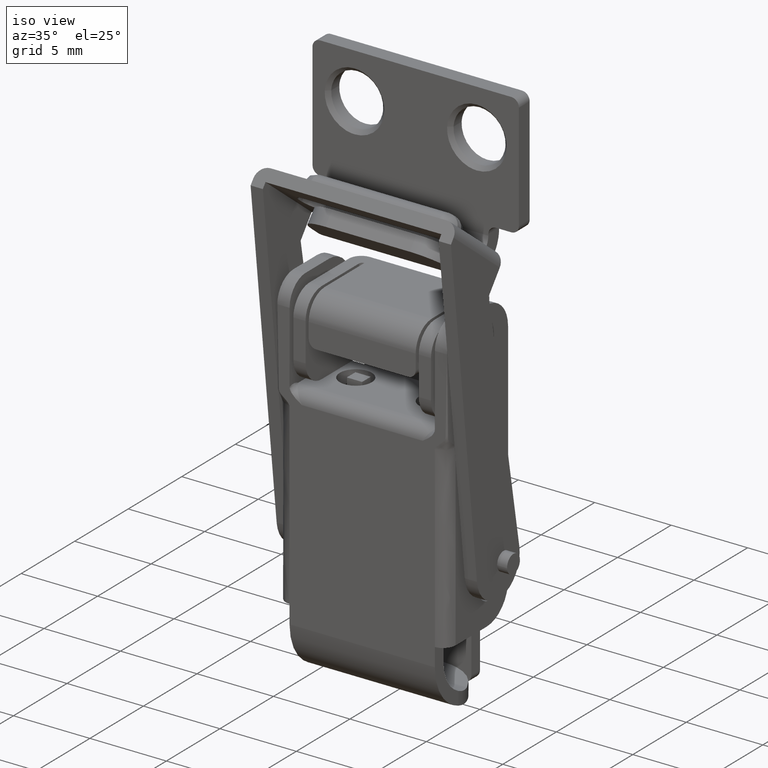
[diagram: clean part render]
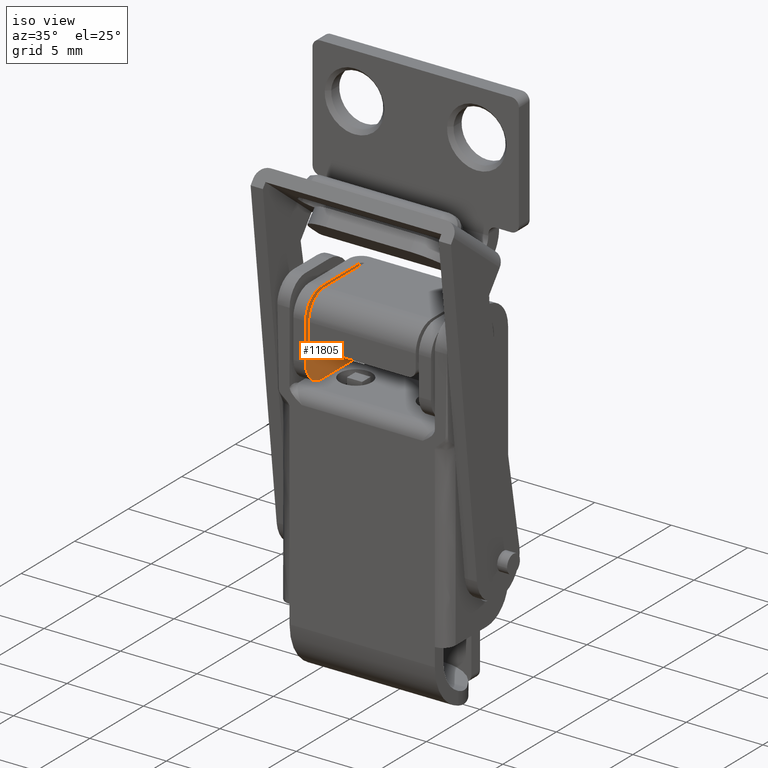
[diagram: same view with one face highlighted and labeled with its STEP entity id]
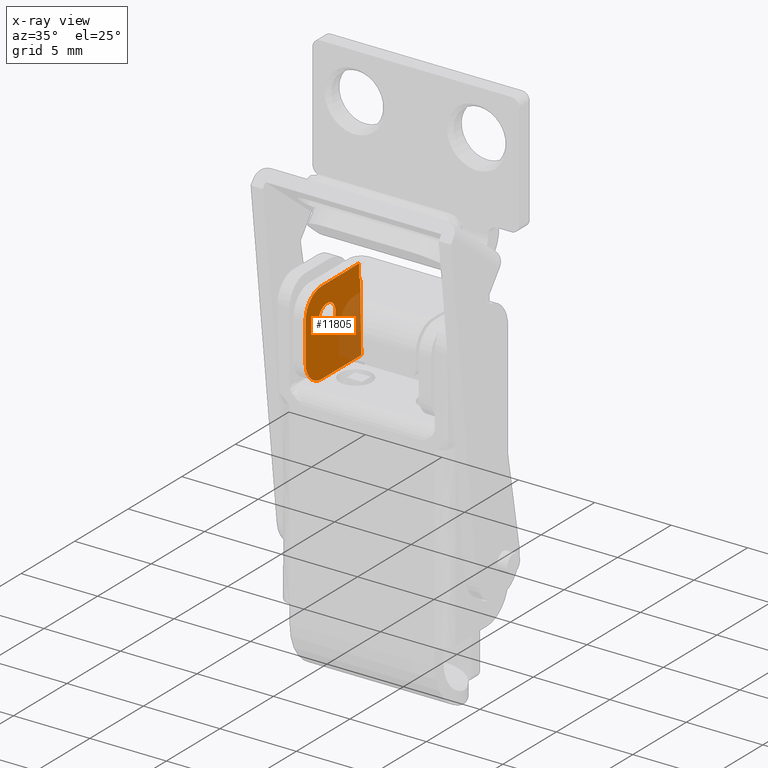
[diagram: x-ray of the same camera — body ghosted, the highlighted face saturated]
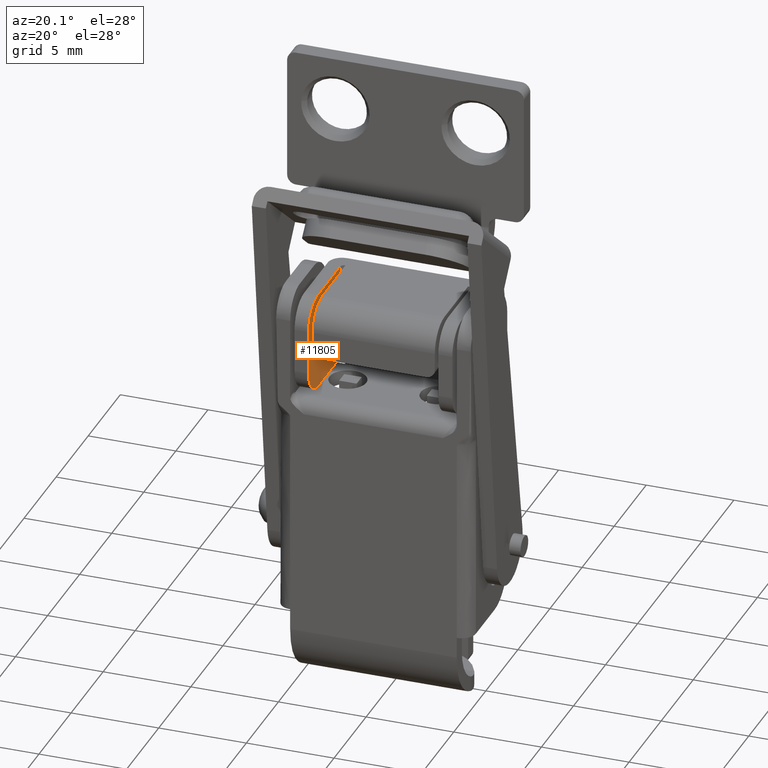
[diagram: same view with one face highlighted and labeled with its STEP entity id]
A machine part, iso view. The second image highlights one B-rep face of the part: STEP entity #11805.
The next image is the same camera in x-ray: the body ghosted, the highlighted face saturated — about 27% of this face is hidden behind the body in this view.
A second angle (auxiliary view) of the same face is appended — the face is thin or edge-on in the first view.
In plain terms, the highlighted face is a freeform B-spline surface patch.
Its self-contained STEP definition (entity closure, byte-faithful):
#10194=CARTESIAN_POINT('',(-3.699997000000000,-1.051480166868890,12.386059985050190));
#10195=VERTEX_POINT('',#10194);
#10196=CARTESIAN_POINT('',(-3.699997000000000,-1.849991000000000,13.234901999999920));
#10197=VERTEX_POINT('',#10196);
#10198=CARTESIAN_POINT('',(-3.699997000000000,-1.051480166868890,12.386059985050187));
#10199=CARTESIAN_POINT('',(-3.699997000000000,-1.049988000000000,12.410456697614393));
#10200=CARTESIAN_POINT('',(-3.699997000000000,-1.049988000000000,12.434898999999920));
#10201=CARTESIAN_POINT('',(-3.699997000000000,-1.049988000000000,13.234901999999920));
#10202=CARTESIAN_POINT('',(-3.699997000000000,-1.849991000000000,13.234901999999920));
#10210=(BOUNDED_CURVE()B_SPLINE_CURVE(2,(#10198,#10199,#10200,#10201,#10202),.UNSPECIFIED.,.F.,.U.)B_SPLINE_CURVE_WITH_KNOTS((3,2,3),(0.239332962203887,0.250000000000000,0.500000000000000),.UNSPECIFIED.)CURVE()GEOMETRIC_REPRESENTATION_ITEM()RATIONAL_B_SPLINE_CURVE((0.976072041591586,0.987502787858767,1.0,0.707106781186547,1.0))REPRESENTATION_ITEM(''));
#10211=EDGE_CURVE('',#10195,#10197,#10210,.T.);
#10213=CARTESIAN_POINT('',(-3.699997000000000,-2.648501833131110,12.483738014949660));
#10214=VERTEX_POINT('',#10213);
#10215=CARTESIAN_POINT('',(-3.699997000000000,-1.849991000000000,13.234901999999920));
#10216=CARTESIAN_POINT('',(-3.699997000000000,-2.602558675476354,13.234901999999920));
#10217=CARTESIAN_POINT('',(-3.699996999999999,-2.648501833131110,12.483738014949655));
#10225=(BOUNDED_CURVE()B_SPLINE_CURVE(2,(#10215,#10216,#10217),.UNSPECIFIED.,.F.,.U.)B_SPLINE_CURVE_WITH_KNOTS((3,3),(0.500000000000000,0.739332962203887),.UNSPECIFIED.)CURVE()GEOMETRIC_REPRESENTATION_ITEM()RATIONAL_B_SPLINE_CURVE((1.0,0.719603993327780,0.976072041591587))REPRESENTATION_ITEM(''));
#10226=EDGE_CURVE('',#10197,#10214,#10225,.T.);
#10293=CARTESIAN_POINT('',(-3.699997000000000,-1.849991000000000,11.634895999999920));
#10294=VERTEX_POINT('',#10293);
#10295=CARTESIAN_POINT('',(-3.699997000000000,-1.849991000000000,11.634895999999920));
#10296=CARTESIAN_POINT('',(-3.699997000000001,-1.097423324523644,11.634895999999920));
#10297=CARTESIAN_POINT('',(-3.699997000000000,-1.051480166868890,12.386059985050185));
#10305=(BOUNDED_CURVE()B_SPLINE_CURVE(2,(#10295,#10296,#10297),.UNSPECIFIED.,.F.,.U.)B_SPLINE_CURVE_WITH_KNOTS((3,3),(0.0,0.239332962203888),.UNSPECIFIED.)CURVE()GEOMETRIC_REPRESENTATION_ITEM()RATIONAL_B_SPLINE_CURVE((1.0,0.719603993327780,0.976072041591587))REPRESENTATION_ITEM(''));
#10306=EDGE_CURVE('',#10294,#10195,#10305,.T.);
#10340=CARTESIAN_POINT('',(-3.699997000000001,-2.648501833131109,12.483738014949664));
#10341=CARTESIAN_POINT('',(-3.699997000000000,-2.649994000000000,12.459341302385447));
#10342=CARTESIAN_POINT('',(-3.699997000000000,-2.649994000000000,12.434898999999920));
#10343=CARTESIAN_POINT('',(-3.699997000000000,-2.649994000000000,11.634895999999918));
#10344=CARTESIAN_POINT('',(-3.699997000000000,-1.849991000000000,11.634895999999920));
#10352=(BOUNDED_CURVE()B_SPLINE_CURVE(2,(#10340,#10341,#10342,#10343,#10344),.UNSPECIFIED.,.F.,.U.)B_SPLINE_CURVE_WITH_KNOTS((3,2,3),(0.739332962203887,0.750000000000000,1.0),.UNSPECIFIED.)CURVE()GEOMETRIC_REPRESENTATION_ITEM()RATIONAL_B_SPLINE_CURVE((0.976072041591587,0.987502787858767,1.0,0.707106781186547,1.0))REPRESENTATION_ITEM(''));
#10353=EDGE_CURVE('',#10214,#10294,#10352,.T.);
#10803=CARTESIAN_POINT('',(-3.699997000000000,-3.849991000000000,10.434898999999920));
#10804=VERTEX_POINT('',#10803);
#10805=CARTESIAN_POINT('',(-3.699997000000000,-3.849991000000000,12.934898999999920));
#10806=VERTEX_POINT('',#10805);
#10807=CARTESIAN_POINT('',(-3.699997000000000,-3.849991000000000,10.434898999999920));
#10808=CARTESIAN_POINT('',(-3.699997000000000,-3.849991000000000,12.934898999999920));
#10809=QUASI_UNIFORM_CURVE('',1,(#10807,#10808),.UNSPECIFIED.,.F.,.U.);
#10810=EDGE_CURVE('',#10804,#10806,#10809,.T.);
#10848=CARTESIAN_POINT('',(-3.699997000000000,-2.349991000000000,14.434898999999920));
#10849=VERTEX_POINT('',#10848);
#10850=CARTESIAN_POINT('',(-3.699997000000000,-2.349991000000000,14.434898999999920));
#10851=CARTESIAN_POINT('',(-3.699997000000001,-3.849991000000001,14.434898999999922));
#10852=CARTESIAN_POINT('',(-3.699997000000000,-3.849991000000000,12.934898999999920));
#10860=(BOUNDED_CURVE()B_SPLINE_CURVE(2,(#10850,#10851,#10852),.UNSPECIFIED.,.F.,.U.)CURVE()GEOMETRIC_REPRESENTATION_ITEM()QUASI_UNIFORM_CURVE()RATIONAL_B_SPLINE_CURVE((1.0,0.707106781186548,1.0))REPRESENTATION_ITEM(''));
#10861=EDGE_CURVE('',#10849,#10806,#10860,.T.);
#11055=CARTESIAN_POINT('',(-3.699997000000000,1.150006000000000,14.434898999999920));
#11056=VERTEX_POINT('',#11055);
#11057=CARTESIAN_POINT('',(-3.699997000000000,-2.349991000000000,14.434898999999920));
#11058=CARTESIAN_POINT('',(-3.699997000000000,1.150006000000000,14.434898999999920));
#11059=QUASI_UNIFORM_CURVE('',1,(#11057,#11058),.UNSPECIFIED.,.F.,.U.);
#11060=EDGE_CURVE('',#10849,#11056,#11059,.T.);
#11369=CARTESIAN_POINT('',(-3.699997000000001,1.288241294117652,11.684898999999920));
#11370=VERTEX_POINT('',#11369);
#11371=CARTESIAN_POINT('',(-3.699997000000001,1.288241294117652,11.684898999999920));
#11372=CARTESIAN_POINT('',(-3.699996999999999,1.275517697337525,12.251402005325460));
#11373=CARTESIAN_POINT('',(-3.699997000000003,1.262753482584047,12.819708036765100));
#11374=CARTESIAN_POINT('',(-3.699997000000001,1.249719295434287,13.400648533202011));
#11375=CARTESIAN_POINT('',(-3.699997000000001,1.246511617855232,13.416723322745071));
#11376=CARTESIAN_POINT('',(-3.699996999999999,1.241452274561774,13.432129884742070));
#11377=CARTESIAN_POINT('',(-3.699997000000001,1.239810101634512,13.437297027759859));
#11378=CARTESIAN_POINT('',(-3.699996999999999,1.237755746513239,13.442312650701190));
#11379=CARTESIAN_POINT('',(-3.699997000000001,1.235205454373551,13.449067133889059));
#11380=CARTESIAN_POINT('',(-3.699996999999999,1.225464268226388,13.471427172625660));
#11381=CARTESIAN_POINT('',(-3.699997000000002,1.210124166139790,13.499081167365979));
#11382=CARTESIAN_POINT('',(-3.699996999999999,1.194179038526758,13.527378453230810));
#11383=CARTESIAN_POINT('',(-3.699997000000001,1.185732868581318,13.542313682365039));
#11384=CARTESIAN_POINT('',(-3.699996999999999,1.173429527119292,13.565370353509980));
#11385=CARTESIAN_POINT('',(-3.699997000000006,1.157801611900954,13.598074055353189));
#11386=CARTESIAN_POINT('',(-3.699996999999997,1.149859297955238,13.633586536169220));
#11387=CARTESIAN_POINT('',(-3.699997000000001,1.150051837358444,13.651710680455480));
#11388=CARTESIAN_POINT('',(-3.699997000000002,1.150067534329187,13.915173273969041));
#11389=CARTESIAN_POINT('',(-3.699997000000001,1.150036767164595,14.175036136984501));
#11390=CARTESIAN_POINT('',(-3.699997000000000,1.150006000000000,14.434898999999920));
#11391=B_SPLINE_CURVE_WITH_KNOTS('',3,(#11371,#11372,#11373,#11374,#11375,#11376,#11377,#11378,#11379,#11380,#11381,#11382,#11383,#11384,#11385,#11386,#11387,#11388,#11389,#11390),.UNSPECIFIED.,.F.,.U.,(4,1,1,1,1,1,1,1,1,1,1,1,1,1,1,2,4),(0.000030414464544,1.699968032319766,1.705378845436258,1.743266478329413,1.748681490892900,1.754096503456387,1.759513475600268,1.764930447744149,1.775763425572205,1.832613249988917,1.859701750626470,1.873246000945248,1.884059531479826,1.938203264707953,1.981495260331273,1.992320643219070,2.771909237729506),.UNSPECIFIED.);
#11392=EDGE_CURVE('',#11370,#11056,#11391,.T.);
#11394=CARTESIAN_POINT('',(-3.699997000000000,1.350006000000014,8.934899000000000));
#11395=VERTEX_POINT('',#11394);
#11396=CARTESIAN_POINT('',(-3.699997000000000,1.350006000000000,8.934899000000000));
#11397=CARTESIAN_POINT('',(-3.699997000000000,1.329417764705887,9.851565666666616));
#11398=CARTESIAN_POINT('',(-3.699997000000000,1.308829529411771,10.768232333333261));
#11399=CARTESIAN_POINT('',(-3.699997000000000,1.288241294117652,11.684898999999920));
#11400=B_SPLINE_CURVE_WITH_KNOTS('',3,(#11396,#11397,#11398,#11399),.UNSPECIFIED.,.F.,.U.,(4,4),(0.0,0.166666666666667),.UNSPECIFIED.);
#11401=EDGE_CURVE('',#11395,#11370,#11400,.T.);
#11767=CARTESIAN_POINT('',(-3.699997000000000,-4.109730840071397,14.709623989339850));
#11768=CARTESIAN_POINT('',(-3.699997000000000,1.609745979546200,14.709623989339850));
#11769=CARTESIAN_POINT('',(-3.699997000000000,-4.109730840071397,8.660173863138574));
#11770=CARTESIAN_POINT('',(-3.699997000000000,1.609745979546200,8.660173863138574));
#11771=B_SPLINE_SURFACE_WITH_KNOTS('',1,1,((#11767,#11769),(#11768,#11770)),.UNSPECIFIED.,.F.,.F.,.U.,(2,2),(2,2),(0.0,5.719476819617597),(0.0,6.049450126201277),.UNSPECIFIED.);
#11772=CARTESIAN_POINT('',(-3.699997000000000,-2.349991000000000,8.934899000000000));
#11773=VERTEX_POINT('',#11772);
#11774=CARTESIAN_POINT('',(-3.699997000000000,1.350006000000014,8.934899000000000));
#11775=CARTESIAN_POINT('',(-3.699997000000000,-2.349991000000000,8.934899000000000));
#11776=QUASI_UNIFORM_CURVE('',1,(#11774,#11775),.UNSPECIFIED.,.F.,.U.);
#11777=EDGE_CURVE('',#11395,#11773,#11776,.T.);
#11778=ORIENTED_EDGE('',*,*,#11777,.F.);
#11779=ORIENTED_EDGE('',*,*,#11401,.T.);
#11780=ORIENTED_EDGE('',*,*,#11392,.T.);
#11781=ORIENTED_EDGE('',*,*,#11060,.F.);
#11782=ORIENTED_EDGE('',*,*,#10861,.T.);
#11783=ORIENTED_EDGE('',*,*,#10810,.F.);
#11784=CARTESIAN_POINT('',(-3.699997000000000,-3.849991000000000,10.434898999999920));
#11785=CARTESIAN_POINT('',(-3.699997000000001,-3.849991000000001,8.934898999999920));
#11786=CARTESIAN_POINT('',(-3.699997000000000,-2.349991000000000,8.934898999999920));
#11794=(BOUNDED_CURVE()B_SPLINE_CURVE(2,(#11784,#11785,#11786),.UNSPECIFIED.,.F.,.U.)CURVE()GEOMETRIC_REPRESENTATION_ITEM()QUASI_UNIFORM_CURVE()RATIONAL_B_SPLINE_CURVE((1.0,0.707106781186548,1.0))REPRESENTATION_ITEM(''));
#11795=EDGE_CURVE('',#10804,#11773,#11794,.T.);
#11796=ORIENTED_EDGE('',*,*,#11795,.T.);
#11797=EDGE_LOOP('',(#11778,#11779,#11780,#11781,#11782,#11783,#11796));
#11798=FACE_OUTER_BOUND('',#11797,.T.);
#11799=ORIENTED_EDGE('',*,*,#10226,.F.);
#11800=ORIENTED_EDGE('',*,*,#10211,.F.);
#11801=ORIENTED_EDGE('',*,*,#10306,.F.);
#11802=ORIENTED_EDGE('',*,*,#10353,.F.);
#11803=EDGE_LOOP('',(#11799,#11800,#11801,#11802));
#11804=FACE_BOUND('',#11803,.T.);
#11805=ADVANCED_FACE('',(#11798,#11804),#11771,.F.);